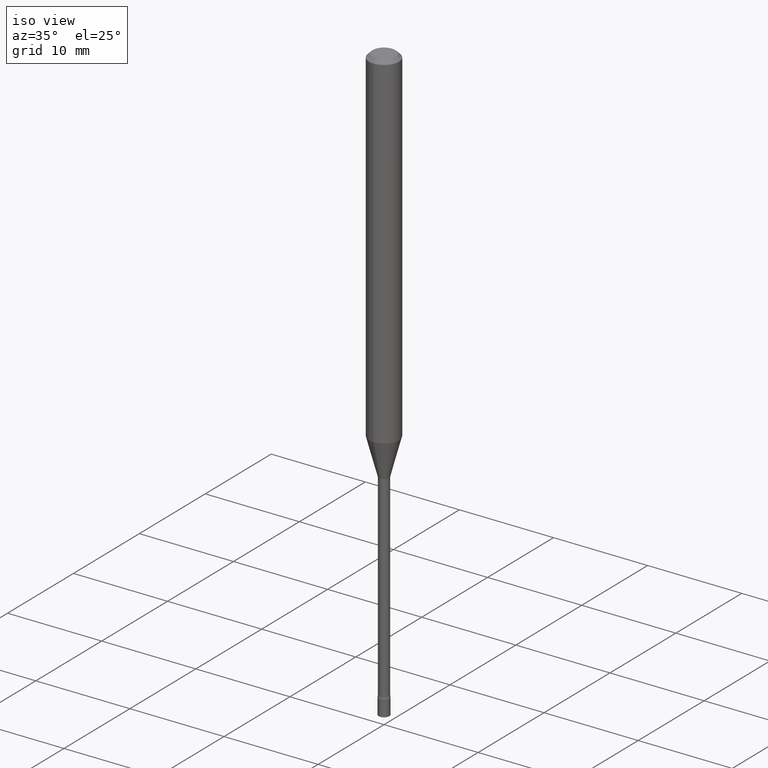
[diagram: clean part render]
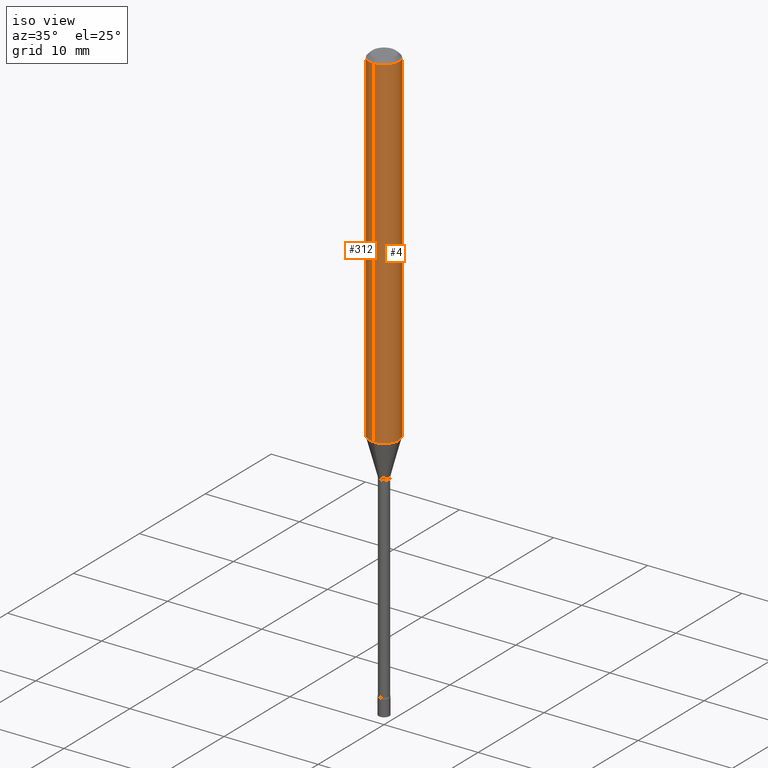
[diagram: same view with one multi-face feature highlighted, each face labeled with its STEP entity id]
A machine part, iso view. The highlighted faces form ONE feature: a constant-radius fillet chain: 2 tangent blend faces with common blend radius 1.5875 mm. The faces share edges in the B-rep.
Their STEP definitions:
[1] entity #4 (Cylinder):
#4 = ADVANCED_FACE ( 'NONE', ( #343 ), #347, .T. ) ;
#10 = VERTEX_POINT ( 'NONE', #389 ) ;
#29 = DIRECTION ( 'NONE',  ( -6.982962677686265922E-15, -1.000000000000000000, 4.370956789862821150E-15 ) ) ;
#48 = EDGE_LOOP ( 'NONE', ( #217, #461, #337, #334 ) ) ;
#57 = VERTEX_POINT ( 'NONE', #510 ) ;
#61 = VERTEX_POINT ( 'NONE', #153 ) ;
#63 = LINE ( 'NONE', #272, #168 ) ;
#64 = VERTEX_POINT ( 'NONE', #73 ) ;
#73 = CARTESIAN_POINT ( 'NONE',  ( -4.364351673553912750E-16, -0.06250000000000005551, -0.01499999999999981209 ) ) ;
#106 = EDGE_CURVE ( 'NONE', #61, #64, #358, .T. ) ;
#116 = CARTESIAN_POINT ( 'NONE',  ( -4.364351673553916201E-16, -0.06250000000000000000, 2.182210479657538645E-16 ) ) ;
#118 = CARTESIAN_POINT ( 'NONE',  ( 3.535308652014583271E-29, -5.047643823391220949E-15, -1.445679699107027538 ) ) ;
#147 = DIRECTION ( 'NONE',  ( -6.982962677686265922E-15, -1.000000000000000000, 3.491536767452061833E-15 ) ) ;
#153 = CARTESIAN_POINT ( 'NONE',  ( -4.364351673553564172E-16, -0.06250000000000506539, -1.445679699107027094 ) ) ;
#159 = AXIS2_PLACEMENT_3D ( 'NONE', #118, #445, #29 ) ;
#168 = VECTOR ( 'NONE', #225, 39.37007874015748143 ) ;
#217 = ORIENTED_EDGE ( 'NONE', *, *, #236, .T. ) ;
#225 = DIRECTION ( 'NONE',  ( -2.445430100594402823E-29, 3.491536767452062227E-15, 1.000000000000000000 ) ) ;
#236 = EDGE_CURVE ( 'NONE', #61, #10, #386, .T. ) ;
#270 = VECTOR ( 'NONE', #278, 39.37007874015748143 ) ;
#272 = CARTESIAN_POINT ( 'NONE',  ( 4.440892098500625669E-16, 0.06250000000000000000, -2.182210479657538645E-16 ) ) ;
#274 = EDGE_CURVE ( 'NONE', #64, #57, #505, .T. ) ;
#278 = DIRECTION ( 'NONE',  ( -2.445430100594402823E-29, 3.491536767452062227E-15, 1.000000000000000000 ) ) ;
#298 = CARTESIAN_POINT ( 'NONE',  ( 3.668145150891610575E-31, -5.237305151178104483E-17, -0.01500000000000003067 ) ) ;
#331 = DIRECTION ( 'NONE',  ( -2.445430100594402543E-29, 3.491536767452062227E-15, 1.000000000000000000 ) ) ;
#334 = ORIENTED_EDGE ( 'NONE', *, *, #106, .F. ) ;
#337 = ORIENTED_EDGE ( 'NONE', *, *, #274, .F. ) ;
#343 = FACE_OUTER_BOUND ( 'NONE', #48, .T. ) ;
#345 = AXIS2_PLACEMENT_3D ( 'NONE', #298, #331, #363 ) ;
#347 = CYLINDRICAL_SURFACE ( 'NONE', #366, 0.06250000000000000000 ) ;
#358 = LINE ( 'NONE', #116, #270 ) ;
#363 = DIRECTION ( 'NONE',  ( -6.982962677686265922E-15, -1.000000000000000000, 3.483106191921935554E-15 ) ) ;
#366 = AXIS2_PLACEMENT_3D ( 'NONE', #425, #508, #147 ) ;
#386 = CIRCLE ( 'NONE', #159, 0.06250000000000000000 ) ;
#389 = CARTESIAN_POINT ( 'NONE',  ( 4.440892098500978191E-16, 0.06249999999999494849, -1.445679699107027760 ) ) ;
#425 = CARTESIAN_POINT ( 'NONE',  ( 0.000000000000000000, 0.000000000000000000, 0.000000000000000000 ) ) ;
#445 = DIRECTION ( 'NONE',  ( -2.445430100594402543E-29, 3.491536767452062227E-15, 1.000000000000000000 ) ) ;
#461 = ORIENTED_EDGE ( 'NONE', *, *, #498, .T. ) ;
#498 = EDGE_CURVE ( 'NONE', #10, #57, #63, .T. ) ;
#505 = CIRCLE ( 'NONE', #345, 0.06250000000000000000 ) ;
#508 = DIRECTION ( 'NONE',  ( -2.445430100594402543E-29, 3.491536767452062227E-15, 1.000000000000000000 ) ) ;
#510 = CARTESIAN_POINT ( 'NONE',  ( 4.440892098500982135E-16, 0.06249999999999995837, -0.01500000000000024751 ) ) ;
[2] entity #312 (Cylinder):
#10 = VERTEX_POINT ( 'NONE', #389 ) ;
#15 = DIRECTION ( 'NONE',  ( -2.445430100594402543E-29, 3.491536767452062227E-15, 1.000000000000000000 ) ) ;
#41 = DIRECTION ( 'NONE',  ( -2.445430100594402543E-29, 3.491536767452062227E-15, 1.000000000000000000 ) ) ;
#43 = ORIENTED_EDGE ( 'NONE', *, *, #498, .F. ) ;
#57 = VERTEX_POINT ( 'NONE', #510 ) ;
#61 = VERTEX_POINT ( 'NONE', #153 ) ;
#63 = LINE ( 'NONE', #272, #168 ) ;
#64 = VERTEX_POINT ( 'NONE', #73 ) ;
#73 = CARTESIAN_POINT ( 'NONE',  ( -4.364351673553912750E-16, -0.06250000000000005551, -0.01499999999999981209 ) ) ;
#78 = CARTESIAN_POINT ( 'NONE',  ( 3.535308652014583271E-29, -5.047643823391220949E-15, -1.445679699107027538 ) ) ;
#82 = EDGE_CURVE ( 'NONE', #10, #61, #438, .T. ) ;
#92 = CARTESIAN_POINT ( 'NONE',  ( 0.000000000000000000, 0.000000000000000000, 0.000000000000000000 ) ) ;
#100 = AXIS2_PLACEMENT_3D ( 'NONE', #215, #15, #210 ) ;
#106 = EDGE_CURVE ( 'NONE', #61, #64, #358, .T. ) ;
#110 = AXIS2_PLACEMENT_3D ( 'NONE', #92, #41, #456 ) ;
#116 = CARTESIAN_POINT ( 'NONE',  ( -4.364351673553916201E-16, -0.06250000000000000000, 2.182210479657538645E-16 ) ) ;
#153 = CARTESIAN_POINT ( 'NONE',  ( -4.364351673553564172E-16, -0.06250000000000506539, -1.445679699107027094 ) ) ;
#168 = VECTOR ( 'NONE', #225, 39.37007874015748143 ) ;
#179 = CYLINDRICAL_SURFACE ( 'NONE', #110, 0.06250000000000000000 ) ;
#210 = DIRECTION ( 'NONE',  ( -6.982962677686265922E-15, -1.000000000000000000, 3.483106191921935554E-15 ) ) ;
#215 = CARTESIAN_POINT ( 'NONE',  ( 3.668145150891610575E-31, -5.237305151178104483E-17, -0.01500000000000003067 ) ) ;
#225 = DIRECTION ( 'NONE',  ( -2.445430100594402823E-29, 3.491536767452062227E-15, 1.000000000000000000 ) ) ;
#258 = EDGE_CURVE ( 'NONE', #57, #64, #328, .T. ) ;
#270 = VECTOR ( 'NONE', #278, 39.37007874015748143 ) ;
#272 = CARTESIAN_POINT ( 'NONE',  ( 4.440892098500625669E-16, 0.06250000000000000000, -2.182210479657538645E-16 ) ) ;
#277 = ORIENTED_EDGE ( 'NONE', *, *, #106, .T. ) ;
#278 = DIRECTION ( 'NONE',  ( -2.445430100594402823E-29, 3.491536767452062227E-15, 1.000000000000000000 ) ) ;
#302 = EDGE_LOOP ( 'NONE', ( #43, #451, #277, #502 ) ) ;
#312 = ADVANCED_FACE ( 'NONE', ( #486 ), #179, .T. ) ;
#328 = CIRCLE ( 'NONE', #100, 0.06250000000000000000 ) ;
#358 = LINE ( 'NONE', #116, #270 ) ;
#389 = CARTESIAN_POINT ( 'NONE',  ( 4.440892098500978191E-16, 0.06249999999999494849, -1.445679699107027760 ) ) ;
#402 = DIRECTION ( 'NONE',  ( -6.982962677686265922E-15, -1.000000000000000000, 4.370956789862821150E-15 ) ) ;
#436 = DIRECTION ( 'NONE',  ( -2.445430100594402543E-29, 3.491536767452062227E-15, 1.000000000000000000 ) ) ;
#438 = CIRCLE ( 'NONE', #479, 0.06250000000000000000 ) ;
#451 = ORIENTED_EDGE ( 'NONE', *, *, #82, .T. ) ;
#456 = DIRECTION ( 'NONE',  ( -6.982962677686265922E-15, -1.000000000000000000, 3.491536767452061833E-15 ) ) ;
#479 = AXIS2_PLACEMENT_3D ( 'NONE', #78, #436, #402 ) ;
#486 = FACE_OUTER_BOUND ( 'NONE', #302, .T. ) ;
#498 = EDGE_CURVE ( 'NONE', #10, #57, #63, .T. ) ;
#502 = ORIENTED_EDGE ( 'NONE', *, *, #258, .F. ) ;
#510 = CARTESIAN_POINT ( 'NONE',  ( 4.440892098500982135E-16, 0.06249999999999995837, -0.01500000000000024751 ) ) ;